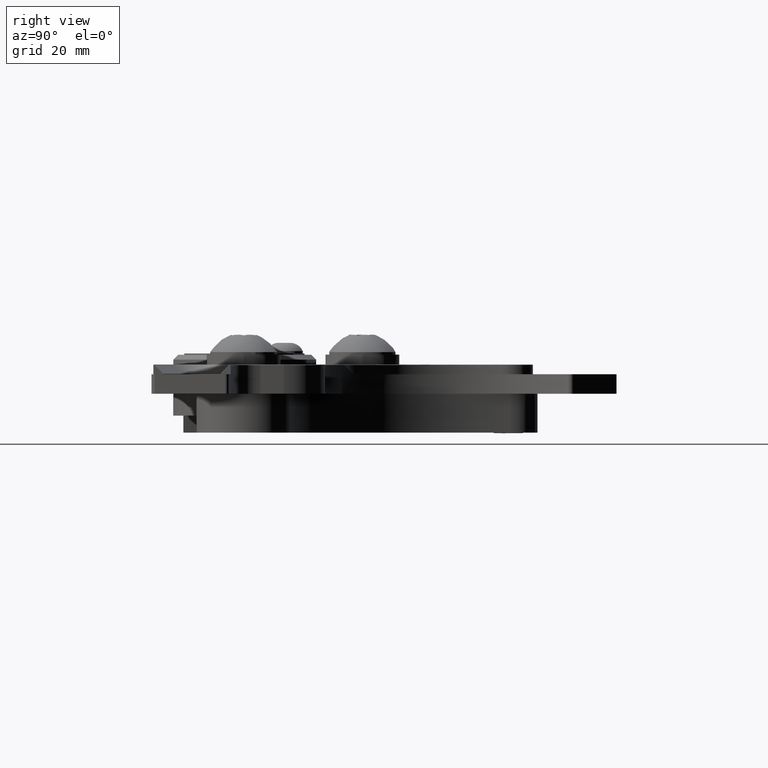
[diagram: clean part render]
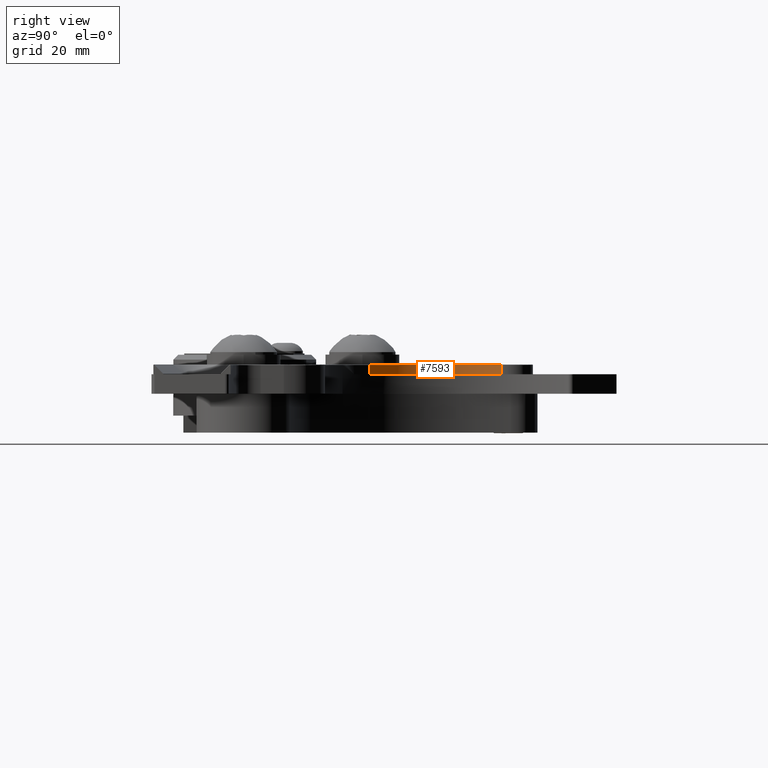
[diagram: same view with one face highlighted and labeled with its STEP entity id]
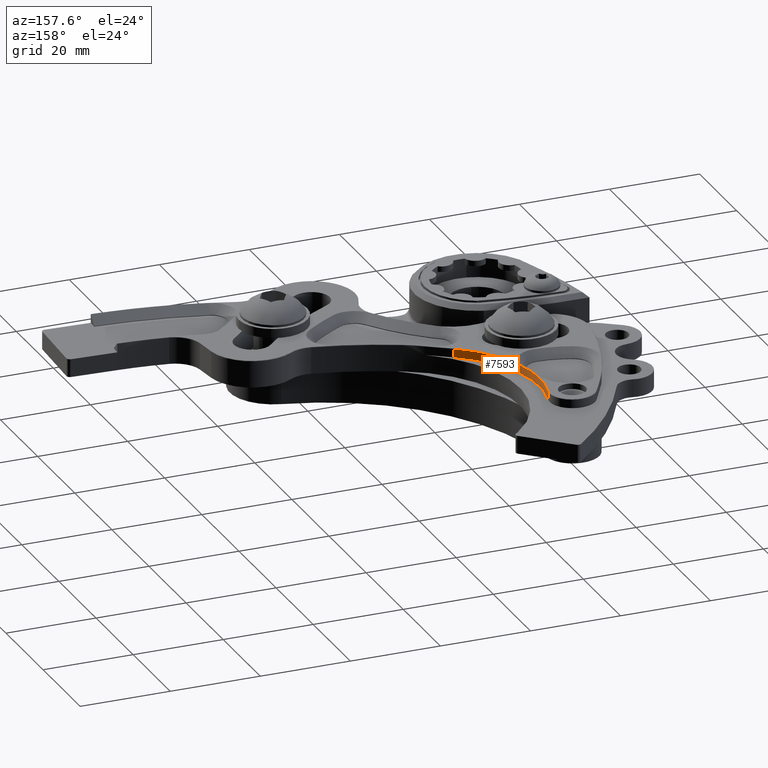
[diagram: same view with one face highlighted and labeled with its STEP entity id]
A machine part, right view. The second image highlights one B-rep face of the part: STEP entity #7593.
A second angle (auxiliary view) of the same face is appended — the face is thin or edge-on in the first view.
In plain terms, the highlighted cylindrical surface (partial cylindrical patch) has radius 24.585 mm, axis along (0, 0, 1).
Its self-contained STEP definition (entity closure, byte-faithful):
#913 = CIRCLE ( 'NONE', #8309, 0.9679117512859971600 ) ;
#914 = VECTOR ( 'NONE', #1693, 39.37007874015748100 ) ;
#917 = LINE ( 'NONE', #1703, #914 ) ;
#930 = CIRCLE ( 'NONE', #8316, 0.9679117512859978200 ) ;
#931 = LINE ( 'NONE', #1903, #933 ) ;
#933 = VECTOR ( 'NONE', #1904, 39.37007874015748100 ) ;
#1065 = FACE_OUTER_BOUND ( 'NONE', #8041, .T. ) ;
#1074 = CYLINDRICAL_SURFACE ( 'NONE', #8382, 0.9679117512859978200 ) ;
#1693 = DIRECTION ( 'NONE',  ( -5.084455053182305500E-030, 1.747819943130306000E-029, -1.000000000000000000 ) ) ;
#1703 = CARTESIAN_POINT ( 'NONE',  ( 10.53550189762025700, -0.8267578008499650900, -0.1539999999999997200 ) ) ;
#1876 = CARTESIAN_POINT ( 'NONE',  ( 9.691257768275960400, -0.3533604958810056500, -0.2279999999999997000 ) ) ;
#1877 = DIRECTION ( 'NONE',  ( -5.084455053182305500E-030, 1.747819943130306000E-029, -1.000000000000000000 ) ) ;
#1878 = DIRECTION ( 'NONE',  ( 0.8733668345107240500, -0.4870630065779144600, 0.0000000000000000000 ) ) ;
#1903 = CARTESIAN_POINT ( 'NONE',  ( 9.506571499399965900, -1.303488982122018600, -0.1539999999999997200 ) ) ;
#1904 = DIRECTION ( 'NONE',  ( -5.084455053182305500E-030, 1.747819943130306000E-029, -1.000000000000000000 ) ) ;
#1910 = CARTESIAN_POINT ( 'NONE',  ( 9.691257768275960400, -0.3533604958810056500, -0.1539999999999996600 ) ) ;
#1911 = DIRECTION ( 'NONE',  ( 5.084455053182305500E-030, -1.747819943130306000E-029, 1.000000000000000000 ) ) ;
#1912 = DIRECTION ( 'NONE',  ( 1.000000000000000000, -2.116810744911386200E-016, 0.0000000000000000000 ) ) ;
#4944 = ORIENTED_EDGE ( 'NONE', *, *, #7432, .T. ) ;
#4960 = ORIENTED_EDGE ( 'NONE', *, *, #7431, .T. ) ;
#4961 = ORIENTED_EDGE ( 'NONE', *, *, #7444, .F. ) ;
#4974 = ORIENTED_EDGE ( 'NONE', *, *, #7443, .T. ) ;
#5155 = CARTESIAN_POINT ( 'NONE',  ( 10.53550189761755200, -0.8267578008512752600, -0.1539999999999997200 ) ) ;
#6228 = CARTESIAN_POINT ( 'NONE',  ( 9.506571499399505900, -1.303488982121927800, -0.1539999999999997200 ) ) ;
#6415 = CARTESIAN_POINT ( 'NONE',  ( 10.53550189761659600, -0.8267578008529832300, -0.2279999999999992000 ) ) ;
#6422 = CARTESIAN_POINT ( 'NONE',  ( 9.506571499399472100, -1.303488982121766100, -0.2279999999999997000 ) ) ;
#7431 = EDGE_CURVE ( 'NONE', #7865, #9075, #917, .T. ) ;
#7432 = EDGE_CURVE ( 'NONE', #9075, #9081, #913, .T. ) ;
#7443 = EDGE_CURVE ( 'NONE', #8211, #7865, #930, .T. ) ;
#7444 = EDGE_CURVE ( 'NONE', #8211, #9081, #931, .T. ) ;
#7593 = ADVANCED_FACE ( 'NONE', ( #1065 ), #1074, .F. ) ;
#7865 = VERTEX_POINT ( 'NONE', #5155 ) ;
#8041 = EDGE_LOOP ( 'NONE', ( #4974, #4960, #4944, #4961 ) ) ;
#8211 = VERTEX_POINT ( 'NONE', #6228 ) ;
#8309 = AXIS2_PLACEMENT_3D ( 'NONE', #1876, #1877, #1878 ) ;
#8316 = AXIS2_PLACEMENT_3D ( 'NONE', #1910, #1911, #1912 ) ;
#8382 = AXIS2_PLACEMENT_3D ( 'NONE', #8870, #8865, #8867 ) ;
#8865 = DIRECTION ( 'NONE',  ( -5.084455053182305500E-030, 1.747819943130306000E-029, -1.000000000000000000 ) ) ;
#8867 = DIRECTION ( 'NONE',  ( 1.000000000000000000, -2.116810744911386200E-016, 0.0000000000000000000 ) ) ;
#8870 = CARTESIAN_POINT ( 'NONE',  ( 9.691257768275960400, -0.3533604958810056500, -0.1539999999999996600 ) ) ;
#9075 = VERTEX_POINT ( 'NONE', #6415 ) ;
#9081 = VERTEX_POINT ( 'NONE', #6422 ) ;